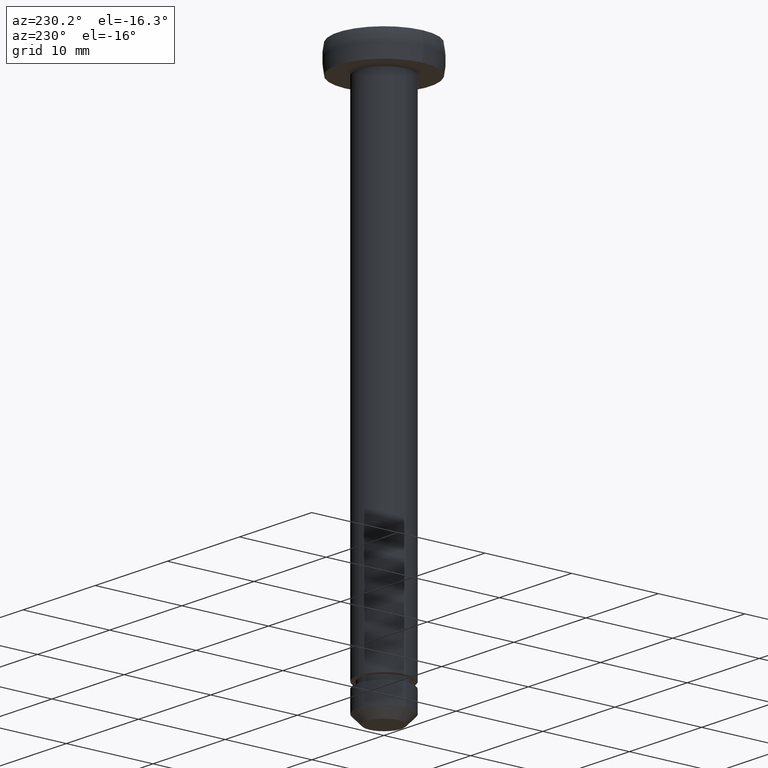
[diagram: clean part render]
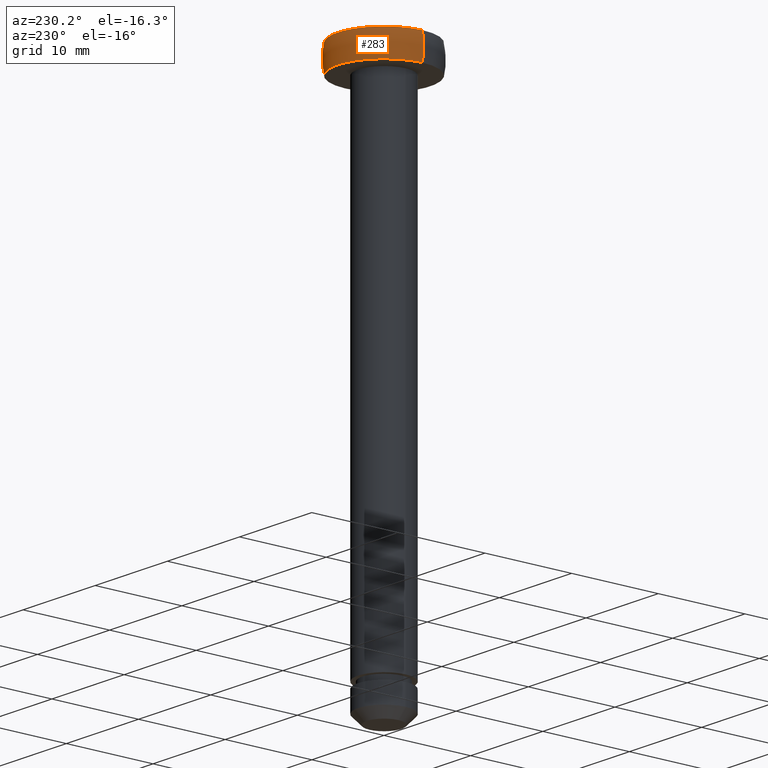
[diagram: same view with one face highlighted and labeled with its STEP entity id]
A machine part, auxiliary view. The second image highlights one B-rep face of the part: STEP entity #283.
In plain terms, the highlighted toroidal blend (fillet) surface has major radius 1.1428 mm and minor (blend) radius 6.6428 mm.
Its self-contained STEP definition (entity closure, byte-faithful):
#11 = CARTESIAN_POINT ( 'NONE',  ( 0.0000000000000000000, 0.0000000000000000000, -6.132507696099412100E-014 ) ) ;
#26 = ORIENTED_EDGE ( 'NONE', *, *, #366, .F. ) ;
#47 = DIRECTION ( 'NONE',  ( -1.000000000000000000, 0.0000000000000000000, 0.0000000000000000000 ) ) ;
#55 = FACE_OUTER_BOUND ( 'NONE', #225, .T. ) ;
#59 = AXIS2_PLACEMENT_3D ( 'NONE', #11, #409, #290 ) ;
#69 = DIRECTION ( 'NONE',  ( -1.000000000000000000, -1.224646799147353200E-016, 0.0000000000000000000 ) ) ;
#77 = AXIS2_PLACEMENT_3D ( 'NONE', #410, #270, #238 ) ;
#79 = CARTESIAN_POINT ( 'NONE',  ( -1.142766791230102100, -1.399485693051835900E-016, -1.500000009021820000 ) ) ;
#81 = CIRCLE ( 'NONE', #426, 6.642766791230087600 ) ;
#84 = EDGE_CURVE ( 'NONE', #401, #171, #203, .T. ) ;
#87 = VERTEX_POINT ( 'NONE', #326 ) ;
#115 = CARTESIAN_POINT ( 'NONE',  ( 1.142766791230102100, 0.0000000000000000000, -1.500000009021820000 ) ) ;
#118 = AXIS2_PLACEMENT_3D ( 'NONE', #231, #136, #47 ) ;
#131 = CIRCLE ( 'NONE', #77, 5.328427118366800400 ) ;
#136 = DIRECTION ( 'NONE',  ( 0.0000000000000000000, 0.0000000000000000000, -1.000000000000000000 ) ) ;
#140 = CARTESIAN_POINT ( 'NONE',  ( -5.328427118366799500, 0.0000000000000000000, -6.132507696099412100E-014 ) ) ;
#171 = VERTEX_POINT ( 'NONE', #288 ) ;
#172 = VERTEX_POINT ( 'NONE', #329 ) ;
#194 = CIRCLE ( 'NONE', #297, 6.642766791230086700 ) ;
#203 = CIRCLE ( 'NONE', #59, 5.328427118366799500 ) ;
#225 = EDGE_LOOP ( 'NONE', ( #398, #302, #424, #26 ) ) ;
#231 = CARTESIAN_POINT ( 'NONE',  ( 0.0000000000000000000, 0.0000000000000000000, -1.500000009021820000 ) ) ;
#238 = DIRECTION ( 'NONE',  ( -1.000000000000000000, 0.0000000000000000000, 0.0000000000000000000 ) ) ;
#258 = TOROIDAL_SURFACE ( 'NONE', #118, -1.142766791230102100, 6.642766791230087600 ) ;
#270 = DIRECTION ( 'NONE',  ( 0.0000000000000000000, 0.0000000000000000000, -1.000000000000000000 ) ) ;
#283 = ADVANCED_FACE ( 'NONE', ( #55 ), #258, .T. ) ;
#287 = EDGE_CURVE ( 'NONE', #172, #87, #131, .T. ) ;
#288 = CARTESIAN_POINT ( 'NONE',  ( 5.328427118366799500, 6.525441214997859000E-016, -6.132507696099412100E-014 ) ) ;
#290 = DIRECTION ( 'NONE',  ( -1.000000000000000000, 0.0000000000000000000, 0.0000000000000000000 ) ) ;
#294 = DIRECTION ( 'NONE',  ( 0.0000000000000000000, 0.0000000000000000000, -1.000000000000000000 ) ) ;
#297 = AXIS2_PLACEMENT_3D ( 'NONE', #115, #385, #294 ) ;
#298 = DIRECTION ( 'NONE',  ( -1.224646799147353200E-016, 1.000000000000000000, 0.0000000000000000000 ) ) ;
#302 = ORIENTED_EDGE ( 'NONE', *, *, #411, .T. ) ;
#326 = CARTESIAN_POINT ( 'NONE',  ( 5.328427118366800400, 6.525441214997859000E-016, -3.000000018043550200 ) ) ;
#329 = CARTESIAN_POINT ( 'NONE',  ( -5.328427118366800400, 0.0000000000000000000, -3.000000018043550200 ) ) ;
#366 = EDGE_CURVE ( 'NONE', #401, #172, #194, .T. ) ;
#385 = DIRECTION ( 'NONE',  ( -0.0000000000000000000, -1.000000000000000000, -0.0000000000000000000 ) ) ;
#398 = ORIENTED_EDGE ( 'NONE', *, *, #84, .T. ) ;
#401 = VERTEX_POINT ( 'NONE', #140 ) ;
#409 = DIRECTION ( 'NONE',  ( 0.0000000000000000000, 0.0000000000000000000, -1.000000000000000000 ) ) ;
#410 = CARTESIAN_POINT ( 'NONE',  ( 0.0000000000000000000, 0.0000000000000000000, -3.000000018043550200 ) ) ;
#411 = EDGE_CURVE ( 'NONE', #171, #87, #81, .T. ) ;
#424 = ORIENTED_EDGE ( 'NONE', *, *, #287, .F. ) ;
#426 = AXIS2_PLACEMENT_3D ( 'NONE', #79, #298, #69 ) ;